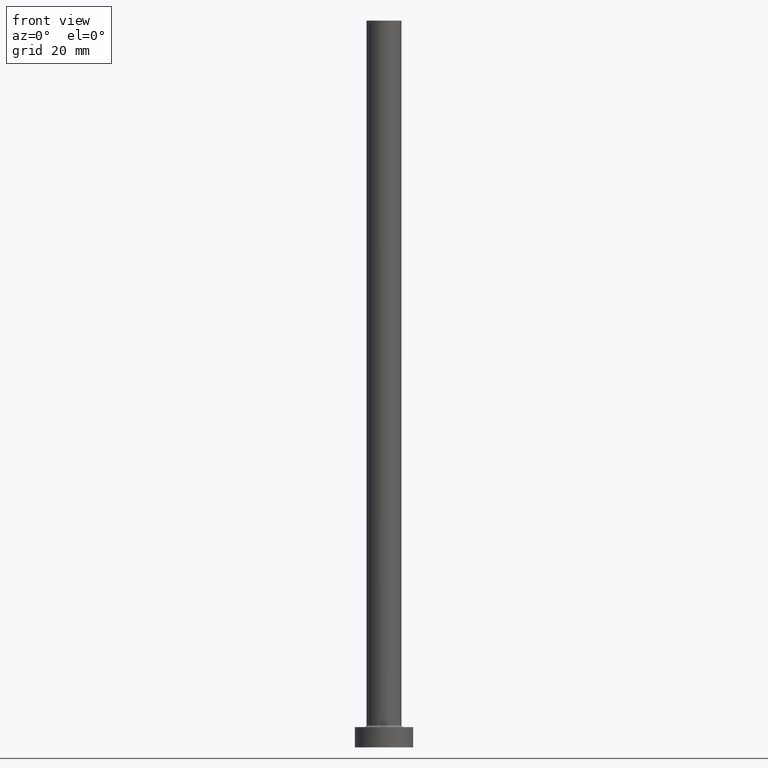
[diagram: clean part render]
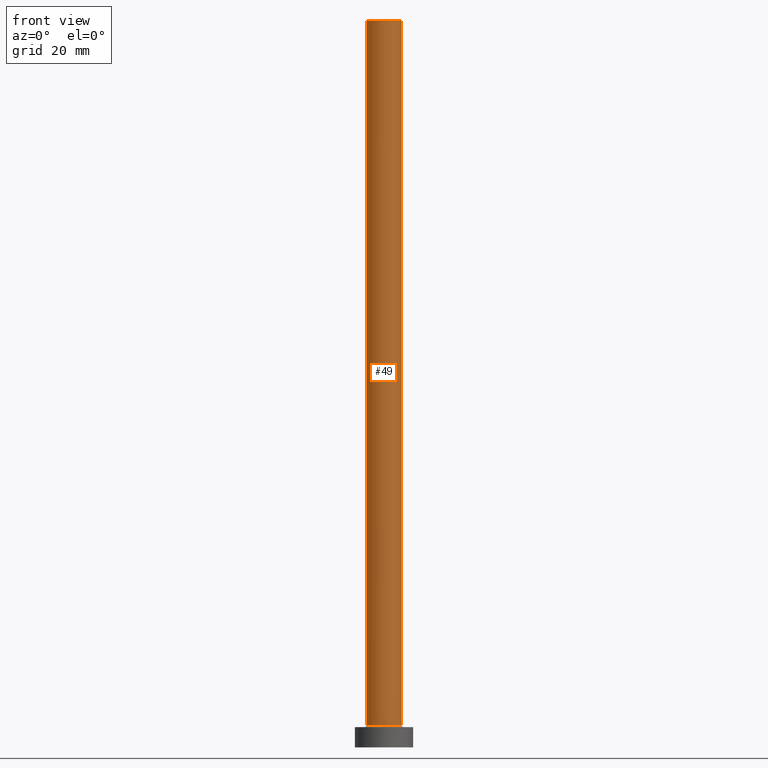
[diagram: same view with one face highlighted and labeled with its STEP entity id]
A machine part, front view. The second image highlights one B-rep face of the part: STEP entity #49.
In plain terms, the highlighted cylindrical surface (edge-blend (fillet) strip) has radius 6 mm, axis along (-0, -0, -1).
Its self-contained STEP definition (entity closure, byte-faithful):
#8 = EDGE_CURVE ( 'NONE', #112, #48, #203, .T. ) ;
#16 = DIRECTION ( 'NONE',  ( 0.000000000000000000, 0.000000000000000000, 1.000000000000000000 ) ) ;
#31 = EDGE_CURVE ( 'NONE', #300, #48, #139, .T. ) ;
#47 = CIRCLE ( 'NONE', #436, 6.000000000000000888 ) ;
#48 = VERTEX_POINT ( 'NONE', #271 ) ;
#49 = ADVANCED_FACE ( 'NONE', ( #347 ), #127, .T. ) ;
#55 = DIRECTION ( 'NONE',  ( -1.000000000000000000, 0.000000000000000000, 0.000000000000000000 ) ) ;
#56 = CARTESIAN_POINT ( 'NONE',  ( -6.000000000000000888, 0.000000000000000000, 250.0000000000000000 ) ) ;
#61 = DIRECTION ( 'NONE',  ( 0.000000000000000000, 0.000000000000000000, 1.000000000000000000 ) ) ;
#64 = DIRECTION ( 'NONE',  ( -0.000000000000000000, -0.000000000000000000, -1.000000000000000000 ) ) ;
#93 = CARTESIAN_POINT ( 'NONE',  ( 0.000000000000000000, 0.000000000000000000, 250.0000000000000000 ) ) ;
#112 = VERTEX_POINT ( 'NONE', #201 ) ;
#116 = EDGE_CURVE ( 'NONE', #295, #112, #47, .T. ) ;
#127 = CYLINDRICAL_SURFACE ( 'NONE', #262, 6.000000000000000888 ) ;
#139 = CIRCLE ( 'NONE', #393, 6.000000000000000888 ) ;
#142 = DIRECTION ( 'NONE',  ( -0.000000000000000000, -0.000000000000000000, -1.000000000000000000 ) ) ;
#143 = CARTESIAN_POINT ( 'NONE',  ( -6.000000000000000888, 0.000000000000000000, 250.0000000000000000 ) ) ;
#174 = CARTESIAN_POINT ( 'NONE',  ( -6.000000000000000888, 0.000000000000000000, 7.700000000000012612 ) ) ;
#201 = CARTESIAN_POINT ( 'NONE',  ( 6.000000000000000888, 7.347880794884120722E-16, 250.0000000000000000 ) ) ;
#202 = EDGE_LOOP ( 'NONE', ( #367, #227, #397, #303 ) ) ;
#203 = LINE ( 'NONE', #406, #332 ) ;
#227 = ORIENTED_EDGE ( 'NONE', *, *, #116, .F. ) ;
#239 = DIRECTION ( 'NONE',  ( 1.000000000000000000, 0.000000000000000000, 0.000000000000000000 ) ) ;
#252 = VECTOR ( 'NONE', #142, 1000.000000000000000 ) ;
#262 = AXIS2_PLACEMENT_3D ( 'NONE', #308, #448, #55 ) ;
#271 = CARTESIAN_POINT ( 'NONE',  ( 6.000000000000000888, 7.347880794884120722E-16, 7.700000000000012612 ) ) ;
#295 = VERTEX_POINT ( 'NONE', #143 ) ;
#300 = VERTEX_POINT ( 'NONE', #174 ) ;
#303 = ORIENTED_EDGE ( 'NONE', *, *, #31, .T. ) ;
#308 = CARTESIAN_POINT ( 'NONE',  ( 0.000000000000000000, 0.000000000000000000, 250.0000000000000000 ) ) ;
#311 = LINE ( 'NONE', #56, #252 ) ;
#332 = VECTOR ( 'NONE', #64, 1000.000000000000000 ) ;
#338 = CARTESIAN_POINT ( 'NONE',  ( 0.000000000000000000, 0.000000000000000000, 7.700000000000012612 ) ) ;
#347 = FACE_OUTER_BOUND ( 'NONE', #202, .T. ) ;
#367 = ORIENTED_EDGE ( 'NONE', *, *, #8, .F. ) ;
#393 = AXIS2_PLACEMENT_3D ( 'NONE', #338, #61, #443 ) ;
#397 = ORIENTED_EDGE ( 'NONE', *, *, #425, .T. ) ;
#406 = CARTESIAN_POINT ( 'NONE',  ( 6.000000000000000888, 7.347880794884120722E-16, 250.0000000000000000 ) ) ;
#425 = EDGE_CURVE ( 'NONE', #295, #300, #311, .T. ) ;
#436 = AXIS2_PLACEMENT_3D ( 'NONE', #93, #16, #239 ) ;
#443 = DIRECTION ( 'NONE',  ( 1.000000000000000000, 0.000000000000000000, 0.000000000000000000 ) ) ;
#448 = DIRECTION ( 'NONE',  ( -0.000000000000000000, -0.000000000000000000, -1.000000000000000000 ) ) ;